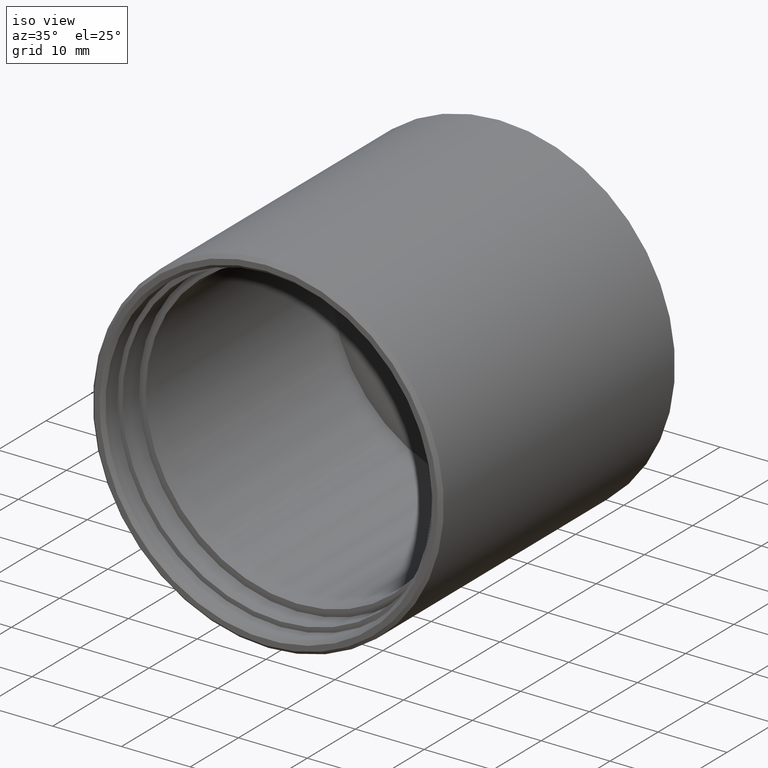
[diagram: clean part render]
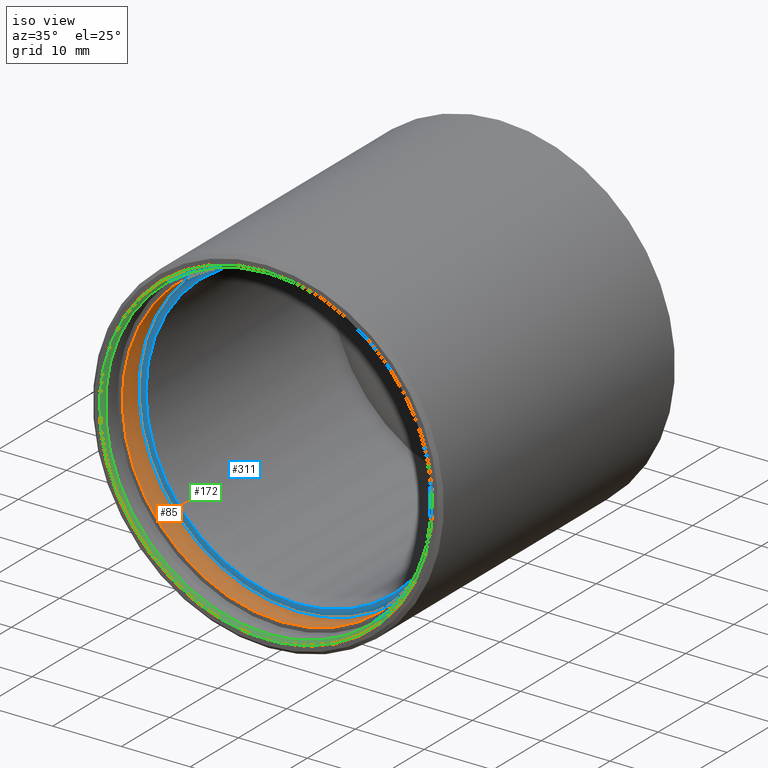
[diagram: same view with three faces highlighted in distinct colors, each labeled with its STEP entity id]
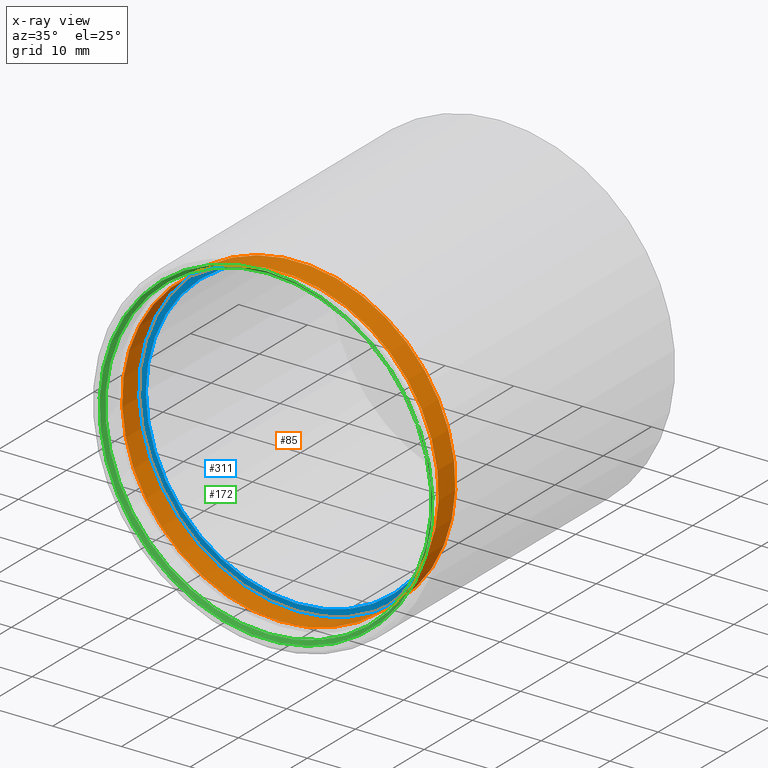
[diagram: x-ray of the same camera — body ghosted, the three highlighted faces saturated]
A machine part, iso view with three faces highlighted in distinct colors.
The next image is the same camera in x-ray (body ghosted, the three faces saturated) — at least one of them is partly hidden behind the body in this view.
Their STEP definitions:

[orange] entity #85 — the highlighted cylindrical surface (bore or boss wall) has radius 23 mm, axis along (-0, -1, -0).
#13 = CIRCLE ( 'NONE', #62, 23.00000000000000000 ) ;
#43 = VERTEX_POINT ( 'NONE', #164 ) ;
#62 = AXIS2_PLACEMENT_3D ( 'NONE', #86, #375, #114 ) ;
#85 = ADVANCED_FACE ( 'NONE', ( #256, #366 ), #109, .F. ) ;
#86 = CARTESIAN_POINT ( 'NONE',  ( 0.000000000000000000, 6.479999999999999538, 0.000000000000000000 ) ) ;
#109 = CYLINDRICAL_SURFACE ( 'NONE', #153, 23.00000000000000000 ) ;
#114 = DIRECTION ( 'NONE',  ( 0.000000000000000000, 0.000000000000000000, -1.000000000000000000 ) ) ;
#122 = EDGE_LOOP ( 'NONE', ( #274 ) ) ;
#124 = ORIENTED_EDGE ( 'NONE', *, *, #241, .F. ) ;
#136 = DIRECTION ( 'NONE',  ( 0.000000000000000000, 0.000000000000000000, -1.000000000000000000 ) ) ;
#153 = AXIS2_PLACEMENT_3D ( 'NONE', #251, #198, #136 ) ;
#164 = CARTESIAN_POINT ( 'NONE',  ( 0.000000000000000000, 3.000000000000000000, -23.00000000000000000 ) ) ;
#167 = DIRECTION ( 'NONE',  ( 0.000000000000000000, 0.000000000000000000, -1.000000000000000000 ) ) ;
#198 = DIRECTION ( 'NONE',  ( -0.000000000000000000, -1.000000000000000000, -0.000000000000000000 ) ) ;
#199 = DIRECTION ( 'NONE',  ( 0.000000000000000000, -1.000000000000000000, 0.000000000000000000 ) ) ;
#230 = CARTESIAN_POINT ( 'NONE',  ( 0.000000000000000000, 6.479999999999999538, -23.00000000000000000 ) ) ;
#241 = EDGE_CURVE ( 'NONE', #290, #290, #13, .T. ) ;
#243 = EDGE_LOOP ( 'NONE', ( #124 ) ) ;
#245 = CIRCLE ( 'NONE', #372, 23.00000000000000000 ) ;
#251 = CARTESIAN_POINT ( 'NONE',  ( 0.000000000000000000, 6.479999999999999538, 0.000000000000000000 ) ) ;
#256 = FACE_OUTER_BOUND ( 'NONE', #243, .T. ) ;
#274 = ORIENTED_EDGE ( 'NONE', *, *, #370, .T. ) ;
#290 = VERTEX_POINT ( 'NONE', #230 ) ;
#312 = CARTESIAN_POINT ( 'NONE',  ( 0.000000000000000000, 3.000000000000000000, 0.000000000000000000 ) ) ;
#366 = FACE_OUTER_BOUND ( 'NONE', #122, .T. ) ;
#370 = EDGE_CURVE ( 'NONE', #43, #43, #245, .T. ) ;
#372 = AXIS2_PLACEMENT_3D ( 'NONE', #312, #199, #167 ) ;
#375 = DIRECTION ( 'NONE',  ( 0.000000000000000000, -1.000000000000000000, 0.000000000000000000 ) ) ;

[blue] entity #311 — the highlighted planar face has unit normal (0, -1, 0).
#3 = FACE_OUTER_BOUND ( 'NONE', #332, .T. ) ;
#13 = CIRCLE ( 'NONE', #62, 23.00000000000000000 ) ;
#61 = EDGE_LOOP ( 'NONE', ( #297 ) ) ;
#62 = AXIS2_PLACEMENT_3D ( 'NONE', #86, #375, #114 ) ;
#86 = CARTESIAN_POINT ( 'NONE',  ( 0.000000000000000000, 6.479999999999999538, 0.000000000000000000 ) ) ;
#89 = FACE_BOUND ( 'NONE', #61, .T. ) ;
#114 = DIRECTION ( 'NONE',  ( 0.000000000000000000, 0.000000000000000000, -1.000000000000000000 ) ) ;
#115 = DIRECTION ( 'NONE',  ( 0.000000000000000000, 0.000000000000000000, -1.000000000000000000 ) ) ;
#116 = DIRECTION ( 'NONE',  ( 0.000000000000000000, -1.000000000000000000, 0.000000000000000000 ) ) ;
#119 = AXIS2_PLACEMENT_3D ( 'NONE', #174, #116, #267 ) ;
#131 = VERTEX_POINT ( 'NONE', #340 ) ;
#146 = CARTESIAN_POINT ( 'NONE',  ( 0.000000000000000000, 6.479999999999999538, 0.000000000000000000 ) ) ;
#174 = CARTESIAN_POINT ( 'NONE',  ( 0.000000000000000000, 6.479999999999999538, 0.000000000000000000 ) ) ;
#194 = AXIS2_PLACEMENT_3D ( 'NONE', #146, #262, #115 ) ;
#230 = CARTESIAN_POINT ( 'NONE',  ( 0.000000000000000000, 6.479999999999999538, -23.00000000000000000 ) ) ;
#241 = EDGE_CURVE ( 'NONE', #290, #290, #13, .T. ) ;
#250 = EDGE_CURVE ( 'NONE', #131, #131, #282, .T. ) ;
#262 = DIRECTION ( 'NONE',  ( 0.000000000000000000, -1.000000000000000000, 0.000000000000000000 ) ) ;
#267 = DIRECTION ( 'NONE',  ( 0.000000000000000000, -0.000000000000000000, -1.000000000000000000 ) ) ;
#282 = CIRCLE ( 'NONE', #194, 22.00000000000000000 ) ;
#290 = VERTEX_POINT ( 'NONE', #230 ) ;
#291 = PLANE ( 'NONE',  #119 ) ;
#297 = ORIENTED_EDGE ( 'NONE', *, *, #250, .F. ) ;
#302 = ORIENTED_EDGE ( 'NONE', *, *, #241, .T. ) ;
#311 = ADVANCED_FACE ( 'NONE', ( #89, #3 ), #291, .T. ) ;
#332 = EDGE_LOOP ( 'NONE', ( #302 ) ) ;
#340 = CARTESIAN_POINT ( 'NONE',  ( 0.000000000000000000, 6.479999999999999538, -22.00000000000000000 ) ) ;
#375 = DIRECTION ( 'NONE',  ( 0.000000000000000000, -1.000000000000000000, 0.000000000000000000 ) ) ;

[green] entity #172 — the highlighted conical surface has half-angle 45 deg.
#14 = ORIENTED_EDGE ( 'NONE', *, *, #360, .F. ) ;
#20 = FACE_OUTER_BOUND ( 'NONE', #222, .T. ) ;
#21 = CARTESIAN_POINT ( 'NONE',  ( 0.000000000000000000, 0.000000000000000000, 24.20000000000000639 ) ) ;
#37 = CONICAL_SURFACE ( 'NONE', #175, 23.70000000000000284, 0.7853981633974482790 ) ;
#42 = DIRECTION ( 'NONE',  ( 0.000000000000000000, 0.000000000000000000, -1.000000000000000000 ) ) ;
#81 = CARTESIAN_POINT ( 'NONE',  ( 0.000000000000000000, 0.000000000000000000, 0.000000000000000000 ) ) ;
#111 = DIRECTION ( 'NONE',  ( 0.000000000000000000, -1.000000000000000000, 0.000000000000000000 ) ) ;
#121 = EDGE_CURVE ( 'NONE', #140, #140, #203, .T. ) ;
#140 = VERTEX_POINT ( 'NONE', #21 ) ;
#172 = ADVANCED_FACE ( 'NONE', ( #20, #258 ), #37, .F. ) ;
#175 = AXIS2_PLACEMENT_3D ( 'NONE', #367, #111, #42 ) ;
#183 = AXIS2_PLACEMENT_3D ( 'NONE', #81, #229, #310 ) ;
#191 = EDGE_LOOP ( 'NONE', ( #14 ) ) ;
#203 = CIRCLE ( 'NONE', #183, 24.20000000000000639 ) ;
#222 = EDGE_LOOP ( 'NONE', ( #224 ) ) ;
#224 = ORIENTED_EDGE ( 'NONE', *, *, #121, .F. ) ;
#226 = VERTEX_POINT ( 'NONE', #307 ) ;
#229 = DIRECTION ( 'NONE',  ( 0.000000000000000000, 1.000000000000000000, 0.000000000000000000 ) ) ;
#257 = DIRECTION ( 'NONE',  ( 0.000000000000000000, 0.000000000000000000, 1.000000000000000000 ) ) ;
#258 = FACE_BOUND ( 'NONE', #191, .T. ) ;
#288 = DIRECTION ( 'NONE',  ( 0.000000000000000000, -1.000000000000000000, 0.000000000000000000 ) ) ;
#307 = CARTESIAN_POINT ( 'NONE',  ( 0.000000000000000000, 0.5000000000000038858, 23.70000000000000284 ) ) ;
#310 = DIRECTION ( 'NONE',  ( 0.000000000000000000, 0.000000000000000000, 1.000000000000000000 ) ) ;
#316 = CARTESIAN_POINT ( 'NONE',  ( 0.000000000000000000, 0.5000000000000038858, 0.000000000000000000 ) ) ;
#347 = AXIS2_PLACEMENT_3D ( 'NONE', #316, #288, #257 ) ;
#348 = CIRCLE ( 'NONE', #347, 23.70000000000000284 ) ;
#360 = EDGE_CURVE ( 'NONE', #226, #226, #348, .T. ) ;
#367 = CARTESIAN_POINT ( 'NONE',  ( 0.000000000000000000, 0.5000000000000038858, 0.000000000000000000 ) ) ;